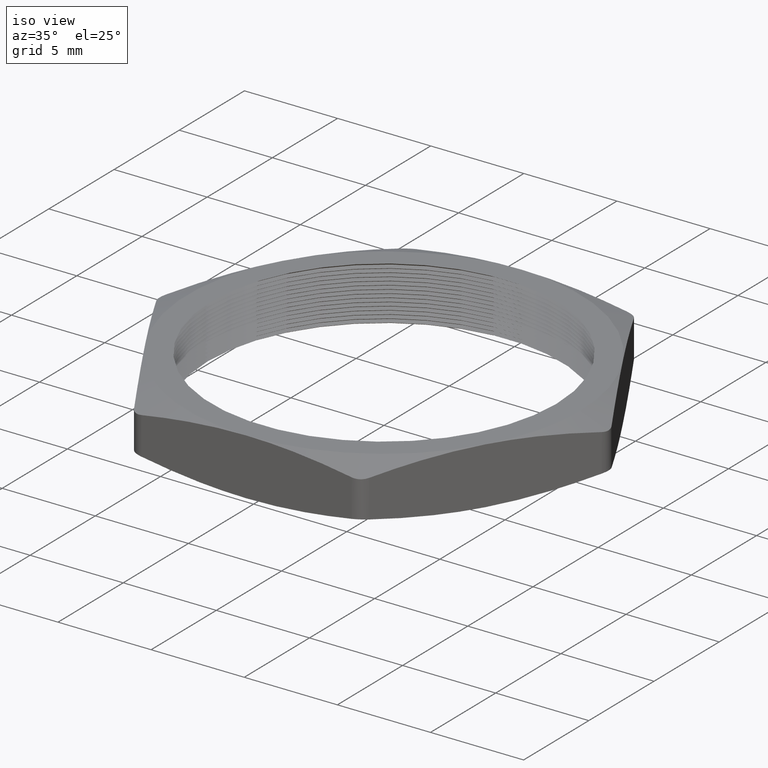
[diagram: clean part render]
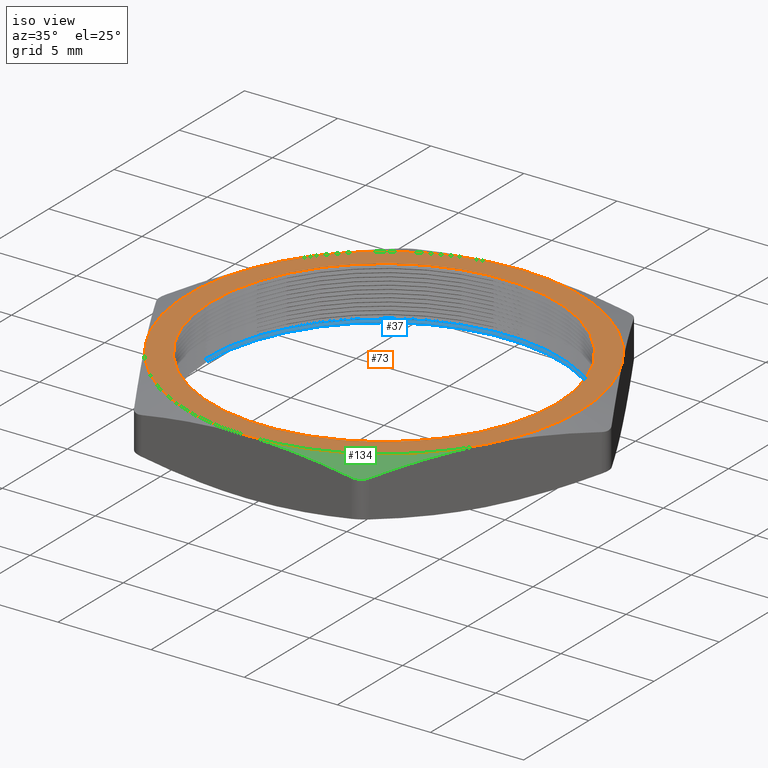
[diagram: same view with three faces highlighted in distinct colors, each labeled with its STEP entity id]
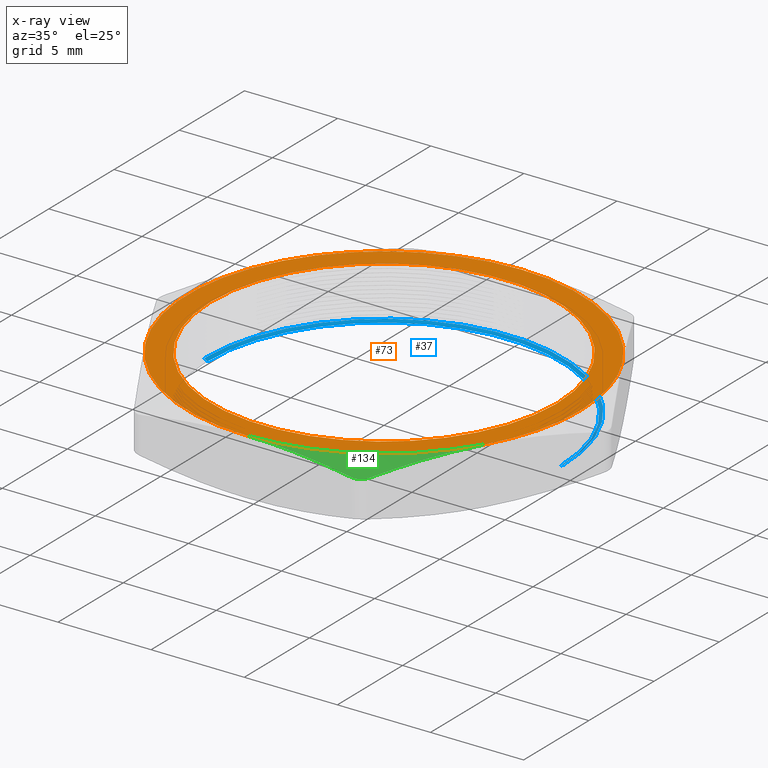
[diagram: x-ray of the same camera — body ghosted, the three highlighted faces saturated]
A machine part, iso view with three faces highlighted in distinct colors.
The next image is the same camera in x-ray (body ghosted, the three faces saturated) — at least one of them is partly hidden behind the body in this view.
Their STEP definitions:

[orange] entity #73 — the highlighted planar face has unit normal (0, 0, 1).
#73 = ADVANCED_FACE ( 'NONE', ( #2260, #2259 ), #2258, .T. ) ;
#74 = ORIENTED_EDGE ( 'NONE', *, *, #75, .T. ) ;
#75 = EDGE_CURVE ( 'NONE', #319, #176, #2253, .T. ) ;
#76 = ORIENTED_EDGE ( 'NONE', *, *, #318, .T. ) ;
#77 = EDGE_LOOP ( 'NONE', ( #78, #80, #81, #2459, #2461, #2463, #142 ) ) ;
#78 = ORIENTED_EDGE ( 'NONE', *, *, #79, .T. ) ;
#79 = EDGE_CURVE ( 'NONE', #2109, #1781, #2248, .T. ) ;
#80 = ORIENTED_EDGE ( 'NONE', *, *, #1780, .T. ) ;
#81 = ORIENTED_EDGE ( 'NONE', *, *, #82, .T. ) ;
#82 = EDGE_CURVE ( 'NONE', #1784, #2070, #2243, .T. ) ;
#86 = EDGE_LOOP ( 'NONE', ( #74, #76 ) ) ;
#141 = EDGE_CURVE ( 'NONE', #174, #2051, #2335, .T. ) ;
#142 = ORIENTED_EDGE ( 'NONE', *, *, #143, .T. ) ;
#143 = EDGE_CURVE ( 'NONE', #2051, #2109, #2393, .T. ) ;
#174 = VERTEX_POINT ( 'NONE', #2455 ) ;
#176 = VERTEX_POINT ( 'NONE', #2446 ) ;
#318 = EDGE_CURVE ( 'NONE', #176, #319, #680, .T. ) ;
#319 = VERTEX_POINT ( 'NONE', #731 ) ;
#324 = VERTEX_POINT ( 'NONE', #724 ) ;
#676 = DIRECTION ( 'NONE',  ( -1.000000000000000000, 0.0000000000000000000, 0.0000000000000000000 ) ) ;
#677 = DIRECTION ( 'NONE',  ( 0.0000000000000000000, 0.0000000000000000000, -1.000000000000000000 ) ) ;
#678 = CARTESIAN_POINT ( 'NONE',  ( 0.0000000000000000000, 0.0000000000000000000, 0.1200000000000000000 ) ) ;
#679 = AXIS2_PLACEMENT_3D ( 'NONE', #678, #677, #676 ) ;
#680 = CIRCLE ( 'NONE', #679, 0.3649999999999999900 ) ;
#724 = CARTESIAN_POINT ( 'NONE',  ( -0.3594005425705420500, 0.2075000000000000500, 0.1200000000000000000 ) ) ;
#731 = CARTESIAN_POINT ( 'NONE',  ( -0.3649999999999999900, 0.0000000000000000000, 0.1200000000000000000 ) ) ;
#1008 = AXIS2_PLACEMENT_3D ( 'NONE', #1061, #1060, #1059 ) ;
#1011 = CIRCLE ( 'NONE', #1008, 0.4150000000000001500 ) ;
#1052 = CARTESIAN_POINT ( 'NONE',  ( 0.3594005425705422100, 0.2075000000000000500, 0.1200000000000000000 ) ) ;
#1058 = CARTESIAN_POINT ( 'NONE',  ( 0.4150000000000001500, 0.0000000000000000000, 0.1200000000000000000 ) ) ;
#1059 = DIRECTION ( 'NONE',  ( 1.000000000000000000, 0.0000000000000000000, 0.0000000000000000000 ) ) ;
#1060 = DIRECTION ( 'NONE',  ( 0.0000000000000000000, 0.0000000000000000000, 1.000000000000000000 ) ) ;
#1061 = CARTESIAN_POINT ( 'NONE',  ( 0.0000000000000000000, 0.0000000000000000000, 0.1200000000000000000 ) ) ;
#1329 = CARTESIAN_POINT ( 'NONE',  ( 0.0000000000000000000, -0.4149999999999999200, 0.1200000000000000000 ) ) ;
#1386 = CARTESIAN_POINT ( 'NONE',  ( 0.0000000000000000000, 0.4150000000000000900, 0.1200000000000000000 ) ) ;
#1503 = CARTESIAN_POINT ( 'NONE',  ( 0.3594005425705421000, -0.2075000000000000700, 0.1200000000000000000 ) ) ;
#1639 = DIRECTION ( 'NONE',  ( 1.000000000000000000, 0.0000000000000000000, 0.0000000000000000000 ) ) ;
#1640 = DIRECTION ( 'NONE',  ( 0.0000000000000000000, 0.0000000000000000000, 1.000000000000000000 ) ) ;
#1641 = CARTESIAN_POINT ( 'NONE',  ( 0.0000000000000000000, 0.0000000000000000000, 0.1200000000000000000 ) ) ;
#1642 = AXIS2_PLACEMENT_3D ( 'NONE', #1641, #1640, #1639 ) ;
#1643 = CIRCLE ( 'NONE', #1642, 0.4150000000000001500 ) ;
#1644 = DIRECTION ( 'NONE',  ( 1.000000000000000000, 0.0000000000000000000, 0.0000000000000000000 ) ) ;
#1645 = DIRECTION ( 'NONE',  ( 0.0000000000000000000, 0.0000000000000000000, 1.000000000000000000 ) ) ;
#1646 = AXIS2_PLACEMENT_3D ( 'NONE', #1653, #1645, #1644 ) ;
#1647 = CIRCLE ( 'NONE', #1646, 0.4150000000000001500 ) ;
#1653 = CARTESIAN_POINT ( 'NONE',  ( 0.0000000000000000000, 0.0000000000000000000, 0.1200000000000000000 ) ) ;
#1780 = EDGE_CURVE ( 'NONE', #1781, #1784, #1011, .T. ) ;
#1781 = VERTEX_POINT ( 'NONE', #1058 ) ;
#1784 = VERTEX_POINT ( 'NONE', #1052 ) ;
#2051 = VERTEX_POINT ( 'NONE', #1329 ) ;
#2070 = VERTEX_POINT ( 'NONE', #1386 ) ;
#2109 = VERTEX_POINT ( 'NONE', #1503 ) ;
#2239 = DIRECTION ( 'NONE',  ( 1.000000000000000000, 0.0000000000000000000, 0.0000000000000000000 ) ) ;
#2240 = DIRECTION ( 'NONE',  ( 0.0000000000000000000, 0.0000000000000000000, 1.000000000000000000 ) ) ;
#2241 = CARTESIAN_POINT ( 'NONE',  ( 0.0000000000000000000, 0.0000000000000000000, 0.1200000000000000000 ) ) ;
#2242 = AXIS2_PLACEMENT_3D ( 'NONE', #2241, #2240, #2239 ) ;
#2243 = CIRCLE ( 'NONE', #2242, 0.4150000000000001500 ) ;
#2244 = DIRECTION ( 'NONE',  ( 1.000000000000000000, 0.0000000000000000000, 0.0000000000000000000 ) ) ;
#2245 = DIRECTION ( 'NONE',  ( 0.0000000000000000000, 0.0000000000000000000, 1.000000000000000000 ) ) ;
#2246 = CARTESIAN_POINT ( 'NONE',  ( 0.0000000000000000000, 0.0000000000000000000, 0.1200000000000000000 ) ) ;
#2247 = AXIS2_PLACEMENT_3D ( 'NONE', #2246, #2245, #2244 ) ;
#2248 = CIRCLE ( 'NONE', #2247, 0.4150000000000001500 ) ;
#2249 = DIRECTION ( 'NONE',  ( -1.000000000000000000, 0.0000000000000000000, 0.0000000000000000000 ) ) ;
#2250 = DIRECTION ( 'NONE',  ( 0.0000000000000000000, 0.0000000000000000000, -1.000000000000000000 ) ) ;
#2251 = CARTESIAN_POINT ( 'NONE',  ( 0.0000000000000000000, 0.0000000000000000000, 0.1200000000000000000 ) ) ;
#2252 = AXIS2_PLACEMENT_3D ( 'NONE', #2251, #2250, #2249 ) ;
#2253 = CIRCLE ( 'NONE', #2252, 0.3649999999999999900 ) ;
#2254 = DIRECTION ( 'NONE',  ( 1.000000000000000000, 0.0000000000000000000, 0.0000000000000000000 ) ) ;
#2255 = DIRECTION ( 'NONE',  ( 0.0000000000000000000, 0.0000000000000000000, 1.000000000000000000 ) ) ;
#2256 = CARTESIAN_POINT ( 'NONE',  ( -0.7188010851410842100, -0.4149999999999999200, 0.1200000000000000000 ) ) ;
#2257 = AXIS2_PLACEMENT_3D ( 'NONE', #2256, #2255, #2254 ) ;
#2258 = PLANE ( 'NONE',  #2257 ) ;
#2259 = FACE_OUTER_BOUND ( 'NONE', #77, .T. ) ;
#2260 = FACE_BOUND ( 'NONE', #86, .T. ) ;
#2334 = AXIS2_PLACEMENT_3D ( 'NONE', #2396, #2395, #2394 ) ;
#2335 = CIRCLE ( 'NONE', #2334, 0.4150000000000001500 ) ;
#2389 = DIRECTION ( 'NONE',  ( 1.000000000000000000, 0.0000000000000000000, 0.0000000000000000000 ) ) ;
#2390 = DIRECTION ( 'NONE',  ( 0.0000000000000000000, 0.0000000000000000000, 1.000000000000000000 ) ) ;
#2391 = CARTESIAN_POINT ( 'NONE',  ( 0.0000000000000000000, 0.0000000000000000000, 0.1200000000000000000 ) ) ;
#2392 = AXIS2_PLACEMENT_3D ( 'NONE', #2391, #2390, #2389 ) ;
#2393 = CIRCLE ( 'NONE', #2392, 0.4150000000000001500 ) ;
#2394 = DIRECTION ( 'NONE',  ( 1.000000000000000000, 0.0000000000000000000, 0.0000000000000000000 ) ) ;
#2395 = DIRECTION ( 'NONE',  ( 0.0000000000000000000, 0.0000000000000000000, 1.000000000000000000 ) ) ;
#2396 = CARTESIAN_POINT ( 'NONE',  ( 0.0000000000000000000, 0.0000000000000000000, 0.1200000000000000000 ) ) ;
#2446 = CARTESIAN_POINT ( 'NONE',  ( 0.3649999999999999900, 4.561809326823890500E-017, 0.1200000000000000000 ) ) ;
#2455 = CARTESIAN_POINT ( 'NONE',  ( -0.3594005425705422100, -0.2074999999999999300, 0.1200000000000000000 ) ) ;
#2459 = ORIENTED_EDGE ( 'NONE', *, *, #2460, .T. ) ;
#2460 = EDGE_CURVE ( 'NONE', #2070, #324, #1647, .T. ) ;
#2461 = ORIENTED_EDGE ( 'NONE', *, *, #2462, .T. ) ;
#2462 = EDGE_CURVE ( 'NONE', #324, #174, #1643, .T. ) ;
#2463 = ORIENTED_EDGE ( 'NONE', *, *, #141, .T. ) ;

[blue] entity #37 — the highlighted conical surface has half-angle 60 deg.
#1 = EDGE_CURVE ( 'NONE', #113, #116, #1965, .T. ) ;
#37 = ADVANCED_FACE ( 'NONE', ( #2033 ), #2039, .F. ) ;
#38 = EDGE_LOOP ( 'NONE', ( #39, #40, #2469, #2470 ) ) ;
#39 = ORIENTED_EDGE ( 'NONE', *, *, #126, .F. ) ;
#40 = ORIENTED_EDGE ( 'NONE', *, *, #41, .T. ) ;
#41 = EDGE_CURVE ( 'NONE', #114, #113, #2023, .T. ) ;
#113 = VERTEX_POINT ( 'NONE', #2305 ) ;
#114 = VERTEX_POINT ( 'NONE', #2304 ) ;
#116 = VERTEX_POINT ( 'NONE', #2303 ) ;
#119 = VERTEX_POINT ( 'NONE', #2361 ) ;
#126 = EDGE_CURVE ( 'NONE', #114, #119, #2355, .T. ) ;
#1680 = DIRECTION ( 'NONE',  ( -1.000000000000000000, 0.0000000000000000000, 0.0000000000000000000 ) ) ;
#1681 = DIRECTION ( 'NONE',  ( 0.0000000000000000000, 0.0000000000000000000, -1.000000000000000000 ) ) ;
#1682 = CARTESIAN_POINT ( 'NONE',  ( 0.0000000000000000000, 0.0000000000000000000, 0.007339745962155812400 ) ) ;
#1683 = AXIS2_PLACEMENT_3D ( 'NONE', #1682, #1681, #1680 ) ;
#1684 = CIRCLE ( 'NONE', #1683, 0.3799999999999999500 ) ;
#1961 = DIRECTION ( 'NONE',  ( 0.8660254037844360400, 0.0000000000000000000, 0.5000000000000043300 ) ) ;
#1962 = VECTOR ( 'NONE', #1961, 39.37007874015748100 ) ;
#1964 = CARTESIAN_POINT ( 'NONE',  ( 0.3649999999999999900, 0.0000000000000000000, -0.001320508075688662100 ) ) ;
#1965 = LINE ( 'NONE', #1964, #1962 ) ;
#1973 = CARTESIAN_POINT ( 'NONE',  ( 0.0000000000000000000, 0.0000000000000000000, 0.003339745962155732100 ) ) ;
#1974 = DIRECTION ( 'NONE',  ( -1.000000000000000000, 0.0000000000000000000, 0.0000000000000000000 ) ) ;
#1975 = DIRECTION ( 'NONE',  ( 0.0000000000000000000, 0.0000000000000000000, -1.000000000000000000 ) ) ;
#1976 = AXIS2_PLACEMENT_3D ( 'NONE', #1973, #1975, #1974 ) ;
#2023 = CIRCLE ( 'NONE', #1976, 0.3730717967697243500 ) ;
#2024 = DIRECTION ( 'NONE',  ( 1.000000000000000000, 0.0000000000000000000, 0.0000000000000000000 ) ) ;
#2025 = DIRECTION ( 'NONE',  ( 0.0000000000000000000, 0.0000000000000000000, 1.000000000000000000 ) ) ;
#2026 = AXIS2_PLACEMENT_3D ( 'NONE', #2040, #2025, #2024 ) ;
#2033 = FACE_OUTER_BOUND ( 'NONE', #38, .T. ) ;
#2039 = CONICAL_SURFACE ( 'NONE', #2026, 0.3649999999999999900, 1.047197551196592700 ) ;
#2040 = CARTESIAN_POINT ( 'NONE',  ( 0.0000000000000000000, 0.0000000000000000000, -0.001320508075688662100 ) ) ;
#2303 = CARTESIAN_POINT ( 'NONE',  ( 0.3799999999999999500, 0.0000000000000000000, 0.007339745962155812400 ) ) ;
#2304 = CARTESIAN_POINT ( 'NONE',  ( -0.3730717967697243500, 4.611234827210944500E-017, 0.003339745962155732100 ) ) ;
#2305 = CARTESIAN_POINT ( 'NONE',  ( 0.3730717967697243500, 0.0000000000000000000, 0.003339745962155732100 ) ) ;
#2347 = DIRECTION ( 'NONE',  ( -0.8660254037844360400, 1.060575238724903800E-016, 0.5000000000000043300 ) ) ;
#2348 = VECTOR ( 'NONE', #2347, 39.37007874015748100 ) ;
#2349 = CARTESIAN_POINT ( 'NONE',  ( -0.3649999999999999900, 4.469960816887839200E-017, -0.001320508075688662100 ) ) ;
#2355 = LINE ( 'NONE', #2349, #2348 ) ;
#2361 = CARTESIAN_POINT ( 'NONE',  ( -0.3799999999999999500, 4.653657836759942400E-017, 0.007339745962155812400 ) ) ;
#2469 = ORIENTED_EDGE ( 'NONE', *, *, #1, .T. ) ;
#2470 = ORIENTED_EDGE ( 'NONE', *, *, #2471, .F. ) ;
#2471 = EDGE_CURVE ( 'NONE', #119, #116, #1684, .T. ) ;

[green] entity #134 — the highlighted conical surface has half-angle 70 deg.
#54 = ORIENTED_EDGE ( 'NONE', *, *, #2111, .T. ) ;
#55 = ORIENTED_EDGE ( 'NONE', *, *, #143, .F. ) ;
#134 = ADVANCED_FACE ( 'NONE', ( #2346 ), #2344, .T. ) ;
#135 = EDGE_LOOP ( 'NONE', ( #136, #137, #54, #55 ) ) ;
#136 = ORIENTED_EDGE ( 'NONE', *, *, #2056, .T. ) ;
#137 = ORIENTED_EDGE ( 'NONE', *, *, #2096, .F. ) ;
#143 = EDGE_CURVE ( 'NONE', #2051, #2109, #2393, .T. ) ;
#1317 = CARTESIAN_POINT ( 'NONE',  ( 0.0000000000000000000, -0.4149999999999999200, 0.1200000000000000000 ) ) ;
#1319 = B_SPLINE_CURVE_WITH_KNOTS ( 'NONE', 3,
 ( #1317, #1366, #1365, #1364, #1363, #1362 ),
 .UNSPECIFIED., .F., .F.,
 ( 4, 2, 4 ),
 ( 0.01626063701772578100, 0.01911388808086466100, 0.02196713914400354200 ),
 .UNSPECIFIED. ) ;
#1329 = CARTESIAN_POINT ( 'NONE',  ( 0.0000000000000000000, -0.4149999999999999200, 0.1200000000000000000 ) ) ;
#1362 = CARTESIAN_POINT ( 'NONE',  ( 0.2222798536380060100, -0.4149999999999999200, 0.09969792397490451200 ) ) ;
#1363 = CARTESIAN_POINT ( 'NONE',  ( 0.1853076007796862500, -0.4149999999999999200, 0.1060515894591160500 ) ) ;
#1364 = CARTESIAN_POINT ( 'NONE',  ( 0.1483045179063530700, -0.4149999999999998100, 0.1111743712499333900 ) ) ;
#1365 = CARTESIAN_POINT ( 'NONE',  ( 0.07421663126981063700, -0.4150000000000000400, 0.1181572406449346300 ) ) ;
#1366 = CARTESIAN_POINT ( 'NONE',  ( 0.03713139348494413200, -0.4149999999999998100, 0.1200000000000000400 ) ) ;
#1415 = CARTESIAN_POINT ( 'NONE',  ( 0.2482606157515391500, -0.3999999999999999100, 0.09969792397490454000 ) ) ;
#1436 = CARTESIAN_POINT ( 'NONE',  ( 0.2222798536380060100, -0.4149999999999999200, 0.09969792397490451200 ) ) ;
#1437 = CARTESIAN_POINT ( 'NONE',  ( 0.2275113311757245300, -0.4149999999999999200, 0.09879889684798844100 ) ) ;
#1438 = CARTESIAN_POINT ( 'NONE',  ( 0.2327615813407827900, -0.4135929475718787000, 0.09832098826833864100 ) ) ;
#1439 = CARTESIAN_POINT ( 'NONE',  ( 0.2418287618170198200, -0.4083508769747918900, 0.09832309406840580900 ) ) ;
#1440 = CARTESIAN_POINT ( 'NONE',  ( 0.2456452612650622000, -0.4045299268503811900, 0.09879902892550709900 ) ) ;
#1441 = CARTESIAN_POINT ( 'NONE',  ( 0.2482606157515391500, -0.3999999999999999100, 0.09969792397490454000 ) ) ;
#1445 = B_SPLINE_CURVE_WITH_KNOTS ( 'NONE', 3,
 ( #1441, #1440, #1439, #1438, #1437, #1436 ),
 .UNSPECIFIED., .F., .F.,
 ( 4, 2, 4 ),
 ( 2.310748191642489300E-007, 0.0003990858534955968800, 0.0007979406321720294800 ),
 .UNSPECIFIED. ) ;
#1485 = CARTESIAN_POINT ( 'NONE',  ( 0.2222798536380060100, -0.4149999999999999200, 0.09969792397490451200 ) ) ;
#1488 = CARTESIAN_POINT ( 'NONE',  ( 0.3594005425705421000, -0.2075000000000000700, 0.1200000000000000000 ) ) ;
#1489 = CARTESIAN_POINT ( 'NONE',  ( 0.3408772214340415900, -0.2395833333333334000, 0.1200000000000000500 ) ) ;
#1490 = CARTESIAN_POINT ( 'NONE',  ( 0.3223539002975410200, -0.2716666666666666100, 0.1181653276878550400 ) ) ;
#1491 = CARTESIAN_POINT ( 'NONE',  ( 0.2853072580245401000, -0.3358333333333333700, 0.1111890150872525500 ) ) ;
#1492 = CARTESIAN_POINT ( 'NONE',  ( 0.2667839368880396400, -0.3679166666666665000, 0.1060643732474954700 ) ) ;
#1493 = CARTESIAN_POINT ( 'NONE',  ( 0.2482606157515391500, -0.3999999999999999100, 0.09969792397490454000 ) ) ;
#1496 = B_SPLINE_CURVE_WITH_KNOTS ( 'NONE', 3,
 ( #1493, #1492, #1491, #1490, #1489, #1488 ),
 .UNSPECIFIED., .F., .F.,
 ( 4, 2, 4 ),
 ( 2.309401076763871900E-007, 0.002823185081310349300, 0.005646139222513021600 ),
 .UNSPECIFIED. ) ;
#1503 = CARTESIAN_POINT ( 'NONE',  ( 0.3594005425705421000, -0.2075000000000000700, 0.1200000000000000000 ) ) ;
#2051 = VERTEX_POINT ( 'NONE', #1329 ) ;
#2056 = EDGE_CURVE ( 'NONE', #2051, #2114, #1319, .T. ) ;
#2079 = VERTEX_POINT ( 'NONE', #1415 ) ;
#2096 = EDGE_CURVE ( 'NONE', #2079, #2114, #1445, .T. ) ;
#2109 = VERTEX_POINT ( 'NONE', #1503 ) ;
#2111 = EDGE_CURVE ( 'NONE', #2079, #2109, #1496, .T. ) ;
#2114 = VERTEX_POINT ( 'NONE', #1485 ) ;
#2340 = DIRECTION ( 'NONE',  ( 1.000000000000000000, 0.0000000000000000000, 0.0000000000000000000 ) ) ;
#2341 = DIRECTION ( 'NONE',  ( 0.0000000000000000000, 0.0000000000000000000, -1.000000000000000000 ) ) ;
#2342 = CARTESIAN_POINT ( 'NONE',  ( 0.0000000000000000000, 0.0000000000000000000, 0.1200000000000000000 ) ) ;
#2343 = AXIS2_PLACEMENT_3D ( 'NONE', #2342, #2341, #2340 ) ;
#2344 = CONICAL_SURFACE ( 'NONE', #2343, 0.4150000000000001500, 1.221730476396033500 ) ;
#2346 = FACE_OUTER_BOUND ( 'NONE', #135, .T. ) ;
#2389 = DIRECTION ( 'NONE',  ( 1.000000000000000000, 0.0000000000000000000, 0.0000000000000000000 ) ) ;
#2390 = DIRECTION ( 'NONE',  ( 0.0000000000000000000, 0.0000000000000000000, 1.000000000000000000 ) ) ;
#2391 = CARTESIAN_POINT ( 'NONE',  ( 0.0000000000000000000, 0.0000000000000000000, 0.1200000000000000000 ) ) ;
#2392 = AXIS2_PLACEMENT_3D ( 'NONE', #2391, #2390, #2389 ) ;
#2393 = CIRCLE ( 'NONE', #2392, 0.4150000000000001500 ) ;